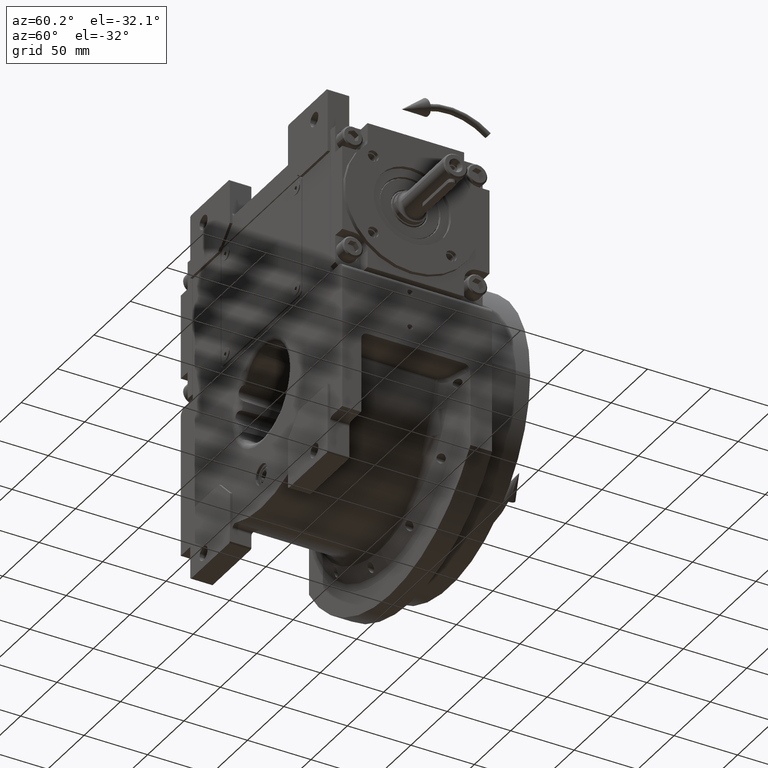
[diagram: clean part render]
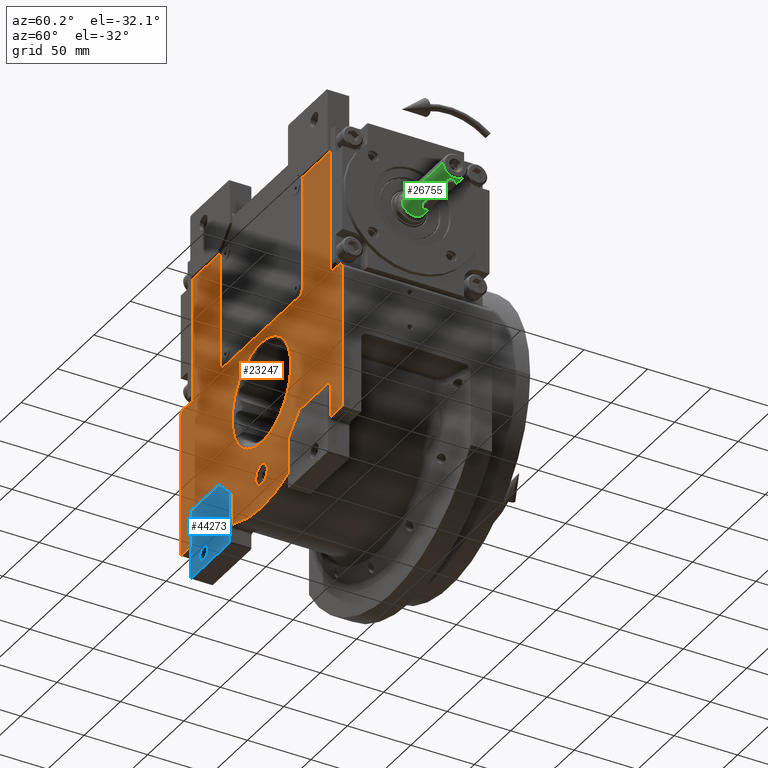
[diagram: same view with three faces highlighted in distinct colors, each labeled with its STEP entity id]
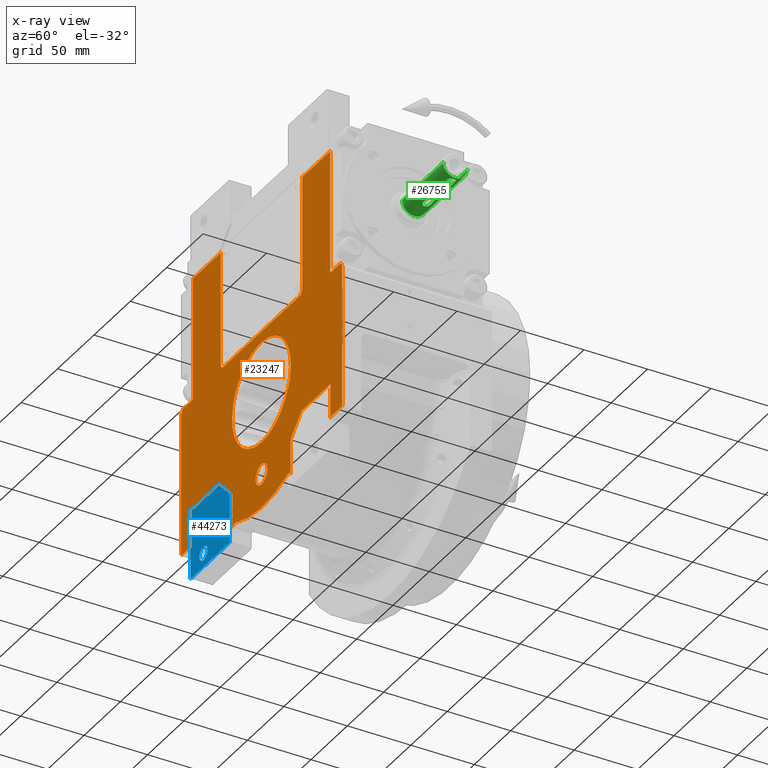
[diagram: x-ray of the same camera — body ghosted, the three highlighted faces saturated]
A machine part, auxiliary view with three faces highlighted in distinct colors.
The next image is the same camera in x-ray (body ghosted, the three faces saturated) — at least one of them is partly hidden behind the body in this view.
Their STEP definitions:

[orange] entity #23247 — the highlighted planar face has unit normal (0, 1, 0).
#12 = CARTESIAN_POINT ( 'NONE',  ( -55.00000000000000000, -53.50000000000000000, -45.00000000000000000 ) ) ;
#329 = DIRECTION ( 'NONE',  ( -3.469446951953617344E-15, 0.000000000000000000, 1.000000000000000000 ) ) ;
#430 = CARTESIAN_POINT ( 'NONE',  ( 52.00000000000000000, -53.50000000000000000, 49.00000000000000000 ) ) ;
#439 = PLANE ( 'NONE',  #8843 ) ;
#475 = VECTOR ( 'NONE', #62715, 1000.000000000000000 ) ;
#605 = VECTOR ( 'NONE', #22302, 1000.000000000000000 ) ;
#892 = VERTEX_POINT ( 'NONE', #16688 ) ;
#954 = CARTESIAN_POINT ( 'NONE',  ( 56.00000000000000000, -53.50000000000000000, 142.0000000000000000 ) ) ;
#1371 = DIRECTION ( 'NONE',  ( 0.000000000000000000, -1.000000000000000000, 0.000000000000000000 ) ) ;
#1452 = DIRECTION ( 'NONE',  ( -1.000000000000000000, 0.000000000000000000, 1.734723475976808672E-15 ) ) ;
#1623 =( BOUNDED_CURVE ( )  B_SPLINE_CURVE ( 3, ( #24927, #40459, #36204, #56610 ),
 .UNSPECIFIED., .F., .F. ) 
 B_SPLINE_CURVE_WITH_KNOTS ( ( 4, 4 ),
 ( 4.574175343352308687, 7.715766673011676957 ),
 .UNSPECIFIED. ) 
 CURVE ( )  GEOMETRIC_REPRESENTATION_ITEM ( )  RATIONAL_B_SPLINE_CURVE ( ( 1.000000000000000000, 0.3333337746434750226, 0.3333337746434750226, 1.000000000000000000 ) ) 
 REPRESENTATION_ITEM ( '' )  );
#1711 = VERTEX_POINT ( 'NONE', #49488 ) ;
#2564 = CARTESIAN_POINT ( 'NONE',  ( 111.0000000000000000, -53.50000000000000000, -71.43528539874399996 ) ) ;
#2633 = CARTESIAN_POINT ( 'NONE',  ( 40.00000000000000000, -53.50000000000000000, -60.00000000000000000 ) ) ;
#3122 = ORIENTED_EDGE ( 'NONE', *, *, #51309, .T. ) ;
#3188 = EDGE_CURVE ( 'NONE', #57203, #10928, #66654, .T. ) ;
#3602 = CARTESIAN_POINT ( 'NONE',  ( 8.881784197001250351E-16, -53.50000000000000000, -66.00000000000000000 ) ) ;
#3698 = EDGE_CURVE ( 'NONE', #10928, #13591, #6963, .T. ) ;
#4111 = CARTESIAN_POINT ( 'NONE',  ( -94.50000000000000000, -53.50000000000000000, -74.43528539874409944 ) ) ;
#4315 = EDGE_CURVE ( 'NONE', #6800, #32798, #59158, .T. ) ;
#4551 = ORIENTED_EDGE ( 'NONE', *, *, #62792, .F. ) ;
#4853 = DIRECTION ( 'NONE',  ( -0.7071067811865474617, 0.000000000000000000, 0.7071067811865474617 ) ) ;
#5042 = CARTESIAN_POINT ( 'NONE',  ( -35.84375000000000000, -53.50000000000000000, -85.81506619433150718 ) ) ;
#5076 = CARTESIAN_POINT ( 'NONE',  ( -111.0000000000000000, -53.50000000000000000, -71.43528539874409944 ) ) ;
#5177 = VERTEX_POINT ( 'NONE', #40936 ) ;
#5194 = LINE ( 'NONE', #27337, #26206 ) ;
#5291 = EDGE_CURVE ( 'NONE', #43536, #54487, #57449, .T. ) ;
#5335 = DIRECTION ( 'NONE',  ( 1.000000000000000000, 0.000000000000000000, 0.000000000000000000 ) ) ;
#5364 = DIRECTION ( 'NONE',  ( 0.000000000000000000, 0.000000000000000000, -1.000000000000000000 ) ) ;
#5680 = CARTESIAN_POINT ( 'NONE',  ( 55.87298334620739837, -53.50000000000000000, 143.0000000000000000 ) ) ;
#6260 = EDGE_CURVE ( 'NONE', #57530, #51033, #43885, .T. ) ;
#6267 = CARTESIAN_POINT ( 'NONE',  ( 97.50000000000000000, -53.50000000000000000, -71.43528539874399996 ) ) ;
#6289 = LINE ( 'NONE', #54794, #7637 ) ;
#6520 = EDGE_CURVE ( 'NONE', #26194, #14423, #62380, .T. ) ;
#6625 = CARTESIAN_POINT ( 'NONE',  ( -97.50000000000000000, -53.50000000000000000, -71.43528539874409944 ) ) ;
#6722 = DIRECTION ( 'NONE',  ( 1.000000000000000000, 0.000000000000000000, 0.000000000000000000 ) ) ;
#6800 = VERTEX_POINT ( 'NONE', #54949 ) ;
#6951 = AXIS2_PLACEMENT_3D ( 'NONE', #56018, #13803, #51778 ) ;
#6963 = LINE ( 'NONE', #6267, #65625 ) ;
#7055 = ORIENTED_EDGE ( 'NONE', *, *, #57271, .T. ) ;
#7540 = CARTESIAN_POINT ( 'NONE',  ( -56.00000000000000000, -53.50000000000000000, 53.00000000000000000 ) ) ;
#7543 = LINE ( 'NONE', #67300, #8726 ) ;
#7574 = CARTESIAN_POINT ( 'NONE',  ( -94.50000000000000000, -53.50000000000000000, 143.0000000000000000 ) ) ;
#7637 = VECTOR ( 'NONE', #16142, 1000.000000000000000 ) ;
#8317 = CARTESIAN_POINT ( 'NONE',  ( 94.50000000000000000, -53.50000000000000000, 45.00000000000000000 ) ) ;
#8586 = VECTOR ( 'NONE', #54008, 1000.000000000000000 ) ;
#8671 = LINE ( 'NONE', #42784, #8586 ) ;
#8726 = VECTOR ( 'NONE', #60998, 1000.000000000000000 ) ;
#8843 = AXIS2_PLACEMENT_3D ( 'NONE', #59482, #10947, #5335 ) ;
#9195 = VERTEX_POINT ( 'NONE', #954 ) ;
#9395 = DIRECTION ( 'NONE',  ( 1.000000000000000000, 0.000000000000000000, 1.387778780781246883E-14 ) ) ;
#9474 = CARTESIAN_POINT ( 'NONE',  ( -8.881784197001250351E-16, -53.50000000000000000, -66.00000000000000000 ) ) ;
#9586 = ORIENTED_EDGE ( 'NONE', *, *, #49699, .F. ) ;
#9639 = ORIENTED_EDGE ( 'NONE', *, *, #28527, .F. ) ;
#9786 = ORIENTED_EDGE ( 'NONE', *, *, #54672, .T. ) ;
#10237 = CIRCLE ( 'NONE', #67516, 3.000000000000002665 ) ;
#10347 = LINE ( 'NONE', #5076, #54821 ) ;
#10396 = ORIENTED_EDGE ( 'NONE', *, *, #37884, .F. ) ;
#10928 = VERTEX_POINT ( 'NONE', #64170 ) ;
#10947 = DIRECTION ( 'NONE',  ( -0.000000000000000000, 1.000000000000000000, 0.000000000000000000 ) ) ;
#11820 = CARTESIAN_POINT ( 'NONE',  ( -1.264761546777279996E-10, -53.50000000000000000, 40.30959420574835406 ) ) ;
#11884 = CARTESIAN_POINT ( 'NONE',  ( -52.00000000000000000, -53.50000000000000000, 49.00000000000000000 ) ) ;
#11952 = ORIENTED_EDGE ( 'NONE', *, *, #22298, .F. ) ;
#12455 = EDGE_LOOP ( 'NONE', ( #49498, #52638, #53234, #37735, #61983, #9639, #42592, #67354, #9786, #36418, #3122, #58390, #17103, #67958, #39875, #35597, #48729, #7055, #27355, #10396, #40312, #9586, #29599, #26779, #67800, #29385, #60414, #66047, #29721, #11952, #41308, #54362 ) ) ;
#12492 = CARTESIAN_POINT ( 'NONE',  ( -1.264761546777279996E-10, -53.50000000000000000, 40.30959420574835406 ) ) ;
#12545 = EDGE_CURVE ( 'NONE', #57930, #54588, #60729, .T. ) ;
#12910 = DIRECTION ( 'NONE',  ( 0.000000000000000000, 0.000000000000000000, -1.000000000000000000 ) ) ;
#12997 = CARTESIAN_POINT ( 'NONE',  ( -94.50000000000000000, -53.50000000000000000, -45.00000000000000000 ) ) ;
#13268 = CARTESIAN_POINT ( 'NONE',  ( 107.0000000000000000, -53.50000000000000000, 41.00000000000000000 ) ) ;
#13591 = VERTEX_POINT ( 'NONE', #2564 ) ;
#13707 = DIRECTION ( 'NONE',  ( 0.000000000000000000, 0.000000000000000000, -1.000000000000000000 ) ) ;
#13803 = DIRECTION ( 'NONE',  ( 0.000000000000000000, -1.000000000000000000, 0.000000000000000000 ) ) ;
#13844 = VERTEX_POINT ( 'NONE', #11884 ) ;
#14050 = EDGE_CURVE ( 'NONE', #54512, #53227, #57289, .T. ) ;
#14128 = ORIENTED_EDGE ( 'NONE', *, *, #42747, .T. ) ;
#14294 = DIRECTION ( 'NONE',  ( 0.000000000000000000, -1.000000000000000000, 0.000000000000000000 ) ) ;
#14423 = VERTEX_POINT ( 'NONE', #46592 ) ;
#15087 = VERTEX_POINT ( 'NONE', #44346 ) ;
#15252 = DIRECTION ( 'NONE',  ( 1.000000000000000000, 0.000000000000000000, 0.000000000000000000 ) ) ;
#15714 = DIRECTION ( 'NONE',  ( 1.000000000000000000, 0.000000000000000000, 0.000000000000000000 ) ) ;
#15943 = DIRECTION ( 'NONE',  ( 6.319570704518680589E-16, 0.000000000000000000, 1.000000000000000000 ) ) ;
#16118 = DIRECTION ( 'NONE',  ( -0.3854166666666672403, 0.000000000000000000, -0.9227426472508764022 ) ) ;
#16142 = DIRECTION ( 'NONE',  ( 0.000000000000000000, 0.000000000000000000, 1.000000000000000000 ) ) ;
#16165 = VECTOR ( 'NONE', #15943, 1000.000000000000000 ) ;
#16204 = CARTESIAN_POINT ( 'NONE',  ( -52.00000000000000000, -53.50000000000000000, 53.00000000000000000 ) ) ;
#16634 = CARTESIAN_POINT ( 'NONE',  ( 111.0000000000000000, -53.50000000000000000, -71.43528539874399996 ) ) ;
#16688 = CARTESIAN_POINT ( 'NONE',  ( 55.87298334620739837, -53.50000000000000000, 143.0000000000000000 ) ) ;
#16799 = DIRECTION ( 'NONE',  ( 0.000000000000000000, 0.000000000000000000, -1.000000000000000000 ) ) ;
#17103 = ORIENTED_EDGE ( 'NONE', *, *, #46551, .F. ) ;
#17364 = AXIS2_PLACEMENT_3D ( 'NONE', #3602, #67233, #35942 ) ;
#17486 = EDGE_LOOP ( 'NONE', ( #4551, #35200 ) ) ;
#17762 = VECTOR ( 'NONE', #13707, 1000.000000000000000 ) ;
#18366 = CARTESIAN_POINT ( 'NONE',  ( -40.00000000000000000, -53.50000000000000000, -88.58329413608420566 ) ) ;
#18420 = VERTEX_POINT ( 'NONE', #50150 ) ;
#19979 = CARTESIAN_POINT ( 'NONE',  ( -37.00000000000000000, -53.50000000000000000, -88.58329413608420566 ) ) ;
#20470 = CARTESIAN_POINT ( 'NONE',  ( 107.0000000000000000, -53.50000000000000000, 45.00000000000000000 ) ) ;
#20536 = VERTEX_POINT ( 'NONE', #52341 ) ;
#20735 = VERTEX_POINT ( 'NONE', #28061 ) ;
#21078 = EDGE_CURVE ( 'NONE', #13844, #54512, #8671, .T. ) ;
#21269 = AXIS2_PLACEMENT_3D ( 'NONE', #28063, #1371, #329 ) ;
#21415 = DIRECTION ( 'NONE',  ( -1.000000000000000000, 0.000000000000000000, 0.000000000000000000 ) ) ;
#21572 = CARTESIAN_POINT ( 'NONE',  ( 94.50000000000000000, -53.50000000000000000, 45.00000000000000000 ) ) ;
#21662 = DIRECTION ( 'NONE',  ( 0.000000000000000000, 0.000000000000000000, -1.000000000000000000 ) ) ;
#22298 = EDGE_CURVE ( 'NONE', #9195, #892, #49197, .T. ) ;
#22302 = DIRECTION ( 'NONE',  ( 0.000000000000000000, 0.000000000000000000, 1.000000000000000000 ) ) ;
#22324 = VECTOR ( 'NONE', #34528, 1000.000000000000000 ) ;
#22360 = VERTEX_POINT ( 'NONE', #4111 ) ;
#22644 = CIRCLE ( 'NONE', #6951, 4.000000000000978773 ) ;
#22710 = CARTESIAN_POINT ( 'NONE',  ( -94.50000000000000000, -53.50000000000000000, 45.00000000000000000 ) ) ;
#22716 = VECTOR ( 'NONE', #15252, 1000.000000000000000 ) ;
#22720 = VERTEX_POINT ( 'NONE', #7574 ) ;
#22989 = EDGE_CURVE ( 'NONE', #5177, #43466, #10347, .T. ) ;
#23247 = ADVANCED_FACE ( 'NONE', ( #59127, #27472, #37342 ), #439, .F. ) ;
#23444 = LINE ( 'NONE', #34351, #24915 ) ;
#23603 = CARTESIAN_POINT ( 'NONE',  ( 8.000000000000000000, -53.50000000000000000, -66.00000000000000000 ) ) ;
#23908 = CARTESIAN_POINT ( 'NONE',  ( 35.84375000000000000, -53.50000000000000000, -85.81506619433150718 ) ) ;
#24318 = AXIS2_PLACEMENT_3D ( 'NONE', #27513, #69022, #48958 ) ;
#24331 = CARTESIAN_POINT ( 'NONE',  ( 40.00000000000000000, -53.50000000000000000, -60.00000000000000000 ) ) ;
#24677 = VECTOR ( 'NONE', #15714, 1000.000000000000000 ) ;
#24915 = VECTOR ( 'NONE', #12910, 1000.000000000000000 ) ;
#24927 = CARTESIAN_POINT ( 'NONE',  ( -1.264761546777279996E-10, -53.50000000000000000, 40.30959420574835406 ) ) ;
#25177 = LINE ( 'NONE', #16634, #16165 ) ;
#26194 = VERTEX_POINT ( 'NONE', #24331 ) ;
#26206 = VECTOR ( 'NONE', #4853, 1000.000000000000114 ) ;
#26504 = DIRECTION ( 'NONE',  ( 1.000000000000000000, 0.000000000000000000, 0.000000000000000000 ) ) ;
#26582 = CARTESIAN_POINT ( 'NONE',  ( 52.00000000000000000, -53.50000000000000000, 53.00000000000000000 ) ) ;
#26779 = ORIENTED_EDGE ( 'NONE', *, *, #3698, .T. ) ;
#27337 = CARTESIAN_POINT ( 'NONE',  ( -40.00000000000000000, -53.50000000000000000, -60.00000000000000000 ) ) ;
#27355 = ORIENTED_EDGE ( 'NONE', *, *, #6520, .F. ) ;
#27358 = VECTOR ( 'NONE', #16799, 1000.000000000000000 ) ;
#27463 = CARTESIAN_POINT ( 'NONE',  ( -94.50000000000000000, -53.50000000000000000, 45.00000000000000000 ) ) ;
#27472 = FACE_BOUND ( 'NONE', #17486, .T. ) ;
#27513 = CARTESIAN_POINT ( 'NONE',  ( -97.50000000000000000, -53.50000000000000000, -74.43528539874409944 ) ) ;
#27692 = DIRECTION ( 'NONE',  ( 1.000000000000000000, 0.000000000000000000, 0.000000000000000000 ) ) ;
#27984 = VERTEX_POINT ( 'NONE', #23603 ) ;
#28061 = CARTESIAN_POINT ( 'NONE',  ( 94.50000000000000000, -53.50000000000000000, -45.00000000000000000 ) ) ;
#28063 = CARTESIAN_POINT ( 'NONE',  ( -107.0000000000000000, -53.50000000000000000, 41.00000000000000000 ) ) ;
#28527 = EDGE_CURVE ( 'NONE', #54487, #22720, #49087, .T. ) ;
#28611 = VERTEX_POINT ( 'NONE', #11820 ) ;
#28900 = EDGE_CURVE ( 'NONE', #20735, #62247, #7543, .T. ) ;
#29061 = DIRECTION ( 'NONE',  ( 0.000000000000000000, 1.000000000000000000, 0.000000000000000000 ) ) ;
#29349 = CIRCLE ( 'NONE', #34970, 8.000000000000000000 ) ;
#29380 = EDGE_LOOP ( 'NONE', ( #14128, #68959 ) ) ;
#29385 = ORIENTED_EDGE ( 'NONE', *, *, #63597, .T. ) ;
#29413 = CARTESIAN_POINT ( 'NONE',  ( 37.00000000000000000, -53.50000000000000000, -88.58329413608420566 ) ) ;
#29583 = VECTOR ( 'NONE', #5364, 1000.000000000000000 ) ;
#29599 = ORIENTED_EDGE ( 'NONE', *, *, #3188, .T. ) ;
#29721 = ORIENTED_EDGE ( 'NONE', *, *, #53253, .F. ) ;
#29799 = CIRCLE ( 'NONE', #43277, 4.000000000000003553 ) ;
#29958 = VECTOR ( 'NONE', #6722, 1000.000000000000000 ) ;
#30632 = EDGE_CURVE ( 'NONE', #1711, #35230, #37744, .T. ) ;
#31207 = VECTOR ( 'NONE', #56752, 1000.000000000000000 ) ;
#31592 = DIRECTION ( 'NONE',  ( 0.000000000000000000, -1.000000000000000000, 0.000000000000000000 ) ) ;
#32736 = LINE ( 'NONE', #5680, #29958 ) ;
#32784 = CARTESIAN_POINT ( 'NONE',  ( 94.50000000000000000, -53.50000000000000000, 143.0000000000000000 ) ) ;
#32798 = VERTEX_POINT ( 'NONE', #8317 ) ;
#33066 = DIRECTION ( 'NONE',  ( 0.000000000000000000, 1.000000000000000000, 0.000000000000000000 ) ) ;
#33146 = EDGE_CURVE ( 'NONE', #43536, #46494, #51577, .T. ) ;
#33373 = VECTOR ( 'NONE', #54710, 1000.000000000000000 ) ;
#33745 = CIRCLE ( 'NONE', #50594, 3.000000000000003997 ) ;
#33899 = EDGE_CURVE ( 'NONE', #28611, #15087, #1623, .T. ) ;
#34351 = CARTESIAN_POINT ( 'NONE',  ( -94.50000000000000000, -53.50000000000000000, -45.00000000000000000 ) ) ;
#34528 = DIRECTION ( 'NONE',  ( 0.000000000000000000, 0.000000000000000000, 1.000000000000000000 ) ) ;
#34831 = CARTESIAN_POINT ( 'NONE',  ( -55.87298334620739837, -53.50000000000000000, 143.0000000000000000 ) ) ;
#34970 = AXIS2_PLACEMENT_3D ( 'NONE', #9474, #36197, #42158 ) ;
#35200 = ORIENTED_EDGE ( 'NONE', *, *, #43212, .F. ) ;
#35230 = VERTEX_POINT ( 'NONE', #41504 ) ;
#35597 = ORIENTED_EDGE ( 'NONE', *, *, #58215, .T. ) ;
#35942 = DIRECTION ( 'NONE',  ( 1.000000000000000000, 0.000000000000000000, 0.000000000000000000 ) ) ;
#36140 = LINE ( 'NONE', #36481, #24677 ) ;
#36197 = DIRECTION ( 'NONE',  ( 0.000000000000000000, -1.000000000000000000, 0.000000000000000000 ) ) ;
#36204 = CARTESIAN_POINT ( 'NONE',  ( 80.61913312125007280, -53.49999999999999289, -40.30955543265933727 ) ) ;
#36245 = LINE ( 'NONE', #57698, #48602 ) ;
#36338 = AXIS2_PLACEMENT_3D ( 'NONE', #59447, #33066, #65755 ) ;
#36418 = ORIENTED_EDGE ( 'NONE', *, *, #22989, .T. ) ;
#36465 = CARTESIAN_POINT ( 'NONE',  ( 51.99999999999940314, -53.50000000000000000, 142.0000000000000000 ) ) ;
#36481 = CARTESIAN_POINT ( 'NONE',  ( -94.50000000000000000, -53.50000000000000000, 143.0000000000000000 ) ) ;
#36601 = EDGE_CURVE ( 'NONE', #46305, #57530, #22644, .T. ) ;
#36793 = DIRECTION ( 'NONE',  ( 0.000000000000000000, -1.000000000000000000, 0.000000000000000000 ) ) ;
#37342 = FACE_OUTER_BOUND ( 'NONE', #12455, .T. ) ;
#37735 = ORIENTED_EDGE ( 'NONE', *, *, #36601, .F. ) ;
#37744 = LINE ( 'NONE', #18366, #22324 ) ;
#37884 = EDGE_CURVE ( 'NONE', #62247, #26194, #36245, .T. ) ;
#38283 = CARTESIAN_POINT ( 'NONE',  ( 55.00000000000000000, -53.50000000000000000, -45.00000000000000000 ) ) ;
#38433 = EDGE_CURVE ( 'NONE', #35230, #18420, #5194, .T. ) ;
#39071 = AXIS2_PLACEMENT_3D ( 'NONE', #36465, #14294, #9395 ) ;
#39423 = CARTESIAN_POINT ( 'NONE',  ( -111.0000000000000000, -53.50000000000000000, 41.00000000000000000 ) ) ;
#39673 = DIRECTION ( 'NONE',  ( 1.000000000000000000, 0.000000000000000000, 5.204170427930416550E-15 ) ) ;
#39822 = CIRCLE ( 'NONE', #17364, 8.000000000000000000 ) ;
#39875 = ORIENTED_EDGE ( 'NONE', *, *, #30632, .F. ) ;
#40312 = ORIENTED_EDGE ( 'NONE', *, *, #28900, .F. ) ;
#40459 = CARTESIAN_POINT ( 'NONE',  ( 80.61913312099713380, -53.49999999999999289, 40.30952624498025472 ) ) ;
#40936 = CARTESIAN_POINT ( 'NONE',  ( -111.0000000000000000, -53.50000000000000000, -71.43528539874409944 ) ) ;
#41308 = ORIENTED_EDGE ( 'NONE', *, *, #54829, .F. ) ;
#41459 = DIRECTION ( 'NONE',  ( 0.000000000000000000, 1.000000000000000000, 0.000000000000000000 ) ) ;
#41504 = CARTESIAN_POINT ( 'NONE',  ( -40.00000000000000000, -53.50000000000000000, -60.00000000000000000 ) ) ;
#42009 = LINE ( 'NONE', #21572, #22716 ) ;
#42158 = DIRECTION ( 'NONE',  ( -1.000000000000000000, 0.000000000000000000, 0.000000000000000000 ) ) ;
#42290 = EDGE_CURVE ( 'NONE', #68604, #22360, #23444, .T. ) ;
#42592 = ORIENTED_EDGE ( 'NONE', *, *, #5291, .F. ) ;
#42747 = EDGE_CURVE ( 'NONE', #15087, #28611, #47788, .T. ) ;
#42784 = CARTESIAN_POINT ( 'NONE',  ( -52.00000000000000000, -53.50000000000000000, 49.00000000000000000 ) ) ;
#42871 = AXIS2_PLACEMENT_3D ( 'NONE', #16204, #48549, #1452 ) ;
#42951 = EDGE_CURVE ( 'NONE', #51033, #13844, #51832, .T. ) ;
#42956 = VECTOR ( 'NONE', #21415, 1000.000000000000000 ) ;
#43212 = EDGE_CURVE ( 'NONE', #64309, #27984, #29349, .T. ) ;
#43277 = AXIS2_PLACEMENT_3D ( 'NONE', #13268, #56860, #39673 ) ;
#43466 = VERTEX_POINT ( 'NONE', #6625 ) ;
#43536 = VERTEX_POINT ( 'NONE', #61111 ) ;
#43885 = LINE ( 'NONE', #58307, #27358 ) ;
#44321 = EDGE_CURVE ( 'NONE', #32798, #47233, #42009, .T. ) ;
#44346 = CARTESIAN_POINT ( 'NONE',  ( 1.264666971694413862E-10, -53.50000000000000000, -40.30959420574829721 ) ) ;
#44798 = LINE ( 'NONE', #66253, #605 ) ;
#46305 = VERTEX_POINT ( 'NONE', #34831 ) ;
#46494 = VERTEX_POINT ( 'NONE', #47784 ) ;
#46551 = EDGE_CURVE ( 'NONE', #18420, #68604, #48138, .T. ) ;
#46592 = CARTESIAN_POINT ( 'NONE',  ( 40.00000000000000000, -53.50000000000000000, -88.58329413608420566 ) ) ;
#47233 = VERTEX_POINT ( 'NONE', #20470 ) ;
#47784 = CARTESIAN_POINT ( 'NONE',  ( -111.0000000000000000, -53.50000000000000000, 41.00000000000000000 ) ) ;
#47788 =( BOUNDED_CURVE ( )  B_SPLINE_CURVE ( 3, ( #49757, #60666, #50090, #12492 ),
 .UNSPECIFIED., .F., .F. ) 
 B_SPLINE_CURVE_WITH_KNOTS ( ( 4, 4 ),
 ( 1.432582689913126872, 4.574174019572492256 ),
 .UNSPECIFIED. ) 
 CURVE ( )  GEOMETRIC_REPRESENTATION_ITEM ( )  RATIONAL_B_SPLINE_CURVE ( ( 1.000000000000000000, 0.3333337746434759108, 0.3333337746434759108, 1.000000000000000000 ) ) 
 REPRESENTATION_ITEM ( '' )  );
#48138 = LINE ( 'NONE', #12, #42956 ) ;
#48549 = DIRECTION ( 'NONE',  ( 0.000000000000000000, -1.000000000000000000, 0.000000000000000000 ) ) ;
#48602 = VECTOR ( 'NONE', #52393, 1000.000000000000114 ) ;
#48729 = ORIENTED_EDGE ( 'NONE', *, *, #12545, .T. ) ;
#48958 = DIRECTION ( 'NONE',  ( 0.000000000000000000, 0.000000000000000000, 1.000000000000000000 ) ) ;
#49087 = LINE ( 'NONE', #22710, #33373 ) ;
#49197 = CIRCLE ( 'NONE', #39071, 4.000000000000572875 ) ;
#49488 = CARTESIAN_POINT ( 'NONE',  ( -40.00000000000000000, -53.50000000000000000, -88.58329413608420566 ) ) ;
#49498 = ORIENTED_EDGE ( 'NONE', *, *, #21078, .F. ) ;
#49699 = EDGE_CURVE ( 'NONE', #57203, #20735, #44798, .T. ) ;
#49757 = CARTESIAN_POINT ( 'NONE',  ( 1.264666971694413862E-10, -53.50000000000000000, -40.30959420574829721 ) ) ;
#50090 = CARTESIAN_POINT ( 'NONE',  ( -80.61913312124997333, -53.49999999999999289, 40.30955543265923069 ) ) ;
#50150 = CARTESIAN_POINT ( 'NONE',  ( -55.00000000000000000, -53.50000000000000000, -45.00000000000000000 ) ) ;
#50153 = CARTESIAN_POINT ( 'NONE',  ( 94.50000000000000000, -53.50000000000000000, -74.43528539874399996 ) ) ;
#50594 = AXIS2_PLACEMENT_3D ( 'NONE', #29413, #29061, #56486 ) ;
#51033 = VERTEX_POINT ( 'NONE', #7540 ) ;
#51309 = EDGE_CURVE ( 'NONE', #43466, #22360, #52402, .T. ) ;
#51577 = CIRCLE ( 'NONE', #21269, 3.999999999999996447 ) ;
#51778 = DIRECTION ( 'NONE',  ( -0.9682458365518610277, 0.000000000000000000, 0.2499999999999737432 ) ) ;
#51832 = CIRCLE ( 'NONE', #42871, 3.999999999999996447 ) ;
#52341 = CARTESIAN_POINT ( 'NONE',  ( 111.0000000000000000, -53.50000000000000000, 41.00000000000000000 ) ) ;
#52393 = DIRECTION ( 'NONE',  ( -0.7071067811865474617, 0.000000000000000000, -0.7071067811865474617 ) ) ;
#52402 = CIRCLE ( 'NONE', #24318, 3.000000000000002665 ) ;
#52638 = ORIENTED_EDGE ( 'NONE', *, *, #42951, .F. ) ;
#53227 = VERTEX_POINT ( 'NONE', #64732 ) ;
#53234 = ORIENTED_EDGE ( 'NONE', *, *, #6260, .F. ) ;
#53253 = EDGE_CURVE ( 'NONE', #892, #6800, #32736, .T. ) ;
#54008 = DIRECTION ( 'NONE',  ( 1.000000000000000000, 0.000000000000000000, 0.000000000000000000 ) ) ;
#54335 = CARTESIAN_POINT ( 'NONE',  ( -56.00000000000000000, -53.50000000000000000, 142.0000000000000000 ) ) ;
#54362 = ORIENTED_EDGE ( 'NONE', *, *, #14050, .F. ) ;
#54487 = VERTEX_POINT ( 'NONE', #27463 ) ;
#54512 = VERTEX_POINT ( 'NONE', #430 ) ;
#54588 = VERTEX_POINT ( 'NONE', #23908 ) ;
#54672 = EDGE_CURVE ( 'NONE', #46494, #5177, #56623, .T. ) ;
#54710 = DIRECTION ( 'NONE',  ( 0.000000000000000000, 0.000000000000000000, 1.000000000000000000 ) ) ;
#54794 = CARTESIAN_POINT ( 'NONE',  ( 56.00000000000000000, -53.50000000000000000, 53.00000000000000000 ) ) ;
#54821 = VECTOR ( 'NONE', #26504, 1000.000000000000000 ) ;
#54829 = EDGE_CURVE ( 'NONE', #53227, #9195, #6289, .T. ) ;
#54949 = CARTESIAN_POINT ( 'NONE',  ( 94.50000000000000000, -53.50000000000000000, 143.0000000000000000 ) ) ;
#56018 = CARTESIAN_POINT ( 'NONE',  ( -51.99999999999900524, -53.50000000000000000, 142.0000000000000000 ) ) ;
#56265 = AXIS2_PLACEMENT_3D ( 'NONE', #64300, #31592, #16118 ) ;
#56486 = DIRECTION ( 'NONE',  ( -0.3854166666666676289, 0.000000000000000000, 0.9227426472508761801 ) ) ;
#56586 = EDGE_CURVE ( 'NONE', #22720, #46305, #36140, .T. ) ;
#56610 = CARTESIAN_POINT ( 'NONE',  ( 1.264666971694413862E-10, -53.50000000000000000, -40.30959420574829721 ) ) ;
#56623 = LINE ( 'NONE', #39423, #17762 ) ;
#56752 = DIRECTION ( 'NONE',  ( 0.000000000000000000, 0.000000000000000000, -1.000000000000000000 ) ) ;
#56860 = DIRECTION ( 'NONE',  ( 0.000000000000000000, -1.000000000000000000, 0.000000000000000000 ) ) ;
#57203 = VERTEX_POINT ( 'NONE', #50153 ) ;
#57271 = EDGE_CURVE ( 'NONE', #54588, #14423, #33745, .T. ) ;
#57289 = CIRCLE ( 'NONE', #58392, 3.999999999999996447 ) ;
#57449 = LINE ( 'NONE', #63418, #475 ) ;
#57530 = VERTEX_POINT ( 'NONE', #54335 ) ;
#57698 = CARTESIAN_POINT ( 'NONE',  ( 55.00000000000000000, -53.50000000000000000, -45.00000000000000000 ) ) ;
#57930 = VERTEX_POINT ( 'NONE', #5042 ) ;
#58215 = EDGE_CURVE ( 'NONE', #1711, #57930, #10237, .T. ) ;
#58307 = CARTESIAN_POINT ( 'NONE',  ( -56.00000000000000000, -53.50000000000000000, 142.0000000000000000 ) ) ;
#58390 = ORIENTED_EDGE ( 'NONE', *, *, #42290, .F. ) ;
#58392 = AXIS2_PLACEMENT_3D ( 'NONE', #26582, #36793, #21662 ) ;
#59127 = FACE_BOUND ( 'NONE', #29380, .T. ) ;
#59158 = LINE ( 'NONE', #32784, #29583 ) ;
#59447 = CARTESIAN_POINT ( 'NONE',  ( 97.50000000000000000, -53.50000000000000000, -74.43528539874399996 ) ) ;
#59482 = CARTESIAN_POINT ( 'NONE',  ( 0.000000000000000000, -53.50000000000000000, 0.000000000000000000 ) ) ;
#60414 = ORIENTED_EDGE ( 'NONE', *, *, #44321, .F. ) ;
#60666 = CARTESIAN_POINT ( 'NONE',  ( -80.61913312099703433, -53.49999999999999289, -40.30952624498007708 ) ) ;
#60729 = CIRCLE ( 'NONE', #56265, 92.99999999999995737 ) ;
#60998 = DIRECTION ( 'NONE',  ( -1.000000000000000000, 0.000000000000000000, 0.000000000000000000 ) ) ;
#61111 = CARTESIAN_POINT ( 'NONE',  ( -107.0000000000000000, -53.50000000000000000, 45.00000000000000000 ) ) ;
#61983 = ORIENTED_EDGE ( 'NONE', *, *, #56586, .F. ) ;
#62247 = VERTEX_POINT ( 'NONE', #38283 ) ;
#62380 = LINE ( 'NONE', #2633, #31207 ) ;
#62560 = EDGE_CURVE ( 'NONE', #13591, #20536, #25177, .T. ) ;
#62715 = DIRECTION ( 'NONE',  ( 1.000000000000000000, 0.000000000000000000, 0.000000000000000000 ) ) ;
#62792 = EDGE_CURVE ( 'NONE', #27984, #64309, #39822, .T. ) ;
#62914 = DIRECTION ( 'NONE',  ( -1.000000000000000000, 0.000000000000000000, 4.625929269271481378E-15 ) ) ;
#63418 = CARTESIAN_POINT ( 'NONE',  ( -107.0000000000000000, -53.50000000000000000, 45.00000000000000000 ) ) ;
#63597 = EDGE_CURVE ( 'NONE', #20536, #47233, #29799, .T. ) ;
#64170 = CARTESIAN_POINT ( 'NONE',  ( 97.50000000000000000, -53.50000000000000000, -71.43528539874399996 ) ) ;
#64300 = CARTESIAN_POINT ( 'NONE',  ( 1.421085471520200056E-14, -53.50000000000000000, -4.263256414560599853E-14 ) ) ;
#64309 = VERTEX_POINT ( 'NONE', #67521 ) ;
#64732 = CARTESIAN_POINT ( 'NONE',  ( 56.00000000000000000, -53.50000000000000000, 53.00000000000000000 ) ) ;
#65625 = VECTOR ( 'NONE', #27692, 1000.000000000000000 ) ;
#65755 = DIRECTION ( 'NONE',  ( -1.000000000000000000, 0.000000000000000000, 0.000000000000000000 ) ) ;
#66047 = ORIENTED_EDGE ( 'NONE', *, *, #4315, .F. ) ;
#66253 = CARTESIAN_POINT ( 'NONE',  ( 94.50000000000000000, -53.50000000000000000, -74.43528539874399996 ) ) ;
#66654 = CIRCLE ( 'NONE', #36338, 3.000000000000002665 ) ;
#67233 = DIRECTION ( 'NONE',  ( 0.000000000000000000, -1.000000000000000000, 0.000000000000000000 ) ) ;
#67300 = CARTESIAN_POINT ( 'NONE',  ( 94.50000000000000000, -53.50000000000000000, -45.00000000000000000 ) ) ;
#67354 = ORIENTED_EDGE ( 'NONE', *, *, #33146, .T. ) ;
#67516 = AXIS2_PLACEMENT_3D ( 'NONE', #19979, #41459, #62914 ) ;
#67521 = CARTESIAN_POINT ( 'NONE',  ( -8.000000000000000000, -53.50000000000000000, -66.00000000000000000 ) ) ;
#67800 = ORIENTED_EDGE ( 'NONE', *, *, #62560, .T. ) ;
#67958 = ORIENTED_EDGE ( 'NONE', *, *, #38433, .F. ) ;
#68604 = VERTEX_POINT ( 'NONE', #12997 ) ;
#68959 = ORIENTED_EDGE ( 'NONE', *, *, #33899, .T. ) ;
#69022 = DIRECTION ( 'NONE',  ( 0.000000000000000000, 1.000000000000000000, 0.000000000000000000 ) ) ;

[blue] entity #44273 — the highlighted planar face has unit normal (0, -1, 0).
#362 = VERTEX_POINT ( 'NONE', #31216 ) ;
#528 = EDGE_CURVE ( 'NONE', #17446, #31368, #56139, .T. ) ;
#1208 = DIRECTION ( 'NONE',  ( 0.000000000000000000, 0.000000000000000000, -1.000000000000000000 ) ) ;
#3105 = VECTOR ( 'NONE', #51170, 1000.000000000000000 ) ;
#3348 = DIRECTION ( 'NONE',  ( 0.000000000000000000, 0.000000000000000000, 1.000000000000000000 ) ) ;
#3595 = VECTOR ( 'NONE', #44093, 1000.000000000000000 ) ;
#3677 = EDGE_CURVE ( 'NONE', #362, #17446, #54772, .T. ) ;
#4260 = VERTEX_POINT ( 'NONE', #30703 ) ;
#5402 = ORIENTED_EDGE ( 'NONE', *, *, #35088, .T. ) ;
#7163 = VECTOR ( 'NONE', #36150, 1000.000000000000114 ) ;
#7971 = CARTESIAN_POINT ( 'NONE',  ( -55.00000000000000000, -55.50000000000000000, -45.00000000000000000 ) ) ;
#7984 = VECTOR ( 'NONE', #47588, 1000.000000000000114 ) ;
#8602 = LINE ( 'NONE', #20203, #10468 ) ;
#10468 = VECTOR ( 'NONE', #3348, 1000.000000000000000 ) ;
#13313 = EDGE_CURVE ( 'NONE', #32899, #49840, #48478, .T. ) ;
#14543 = DIRECTION ( 'NONE',  ( 1.000000000000000000, 0.000000000000000000, 0.000000000000000000 ) ) ;
#15500 = ORIENTED_EDGE ( 'NONE', *, *, #48168, .T. ) ;
#15579 = CARTESIAN_POINT ( 'NONE',  ( -94.50000000000000000, -55.50000000000000000, -99.00000000000000000 ) ) ;
#15722 = CARTESIAN_POINT ( 'NONE',  ( -41.00000000000000000, -55.50000000000000000, -100.0000000000000000 ) ) ;
#15952 = CARTESIAN_POINT ( 'NONE',  ( 0.000000000000000000, -55.50000000000000000, 0.000000000000000000 ) ) ;
#16117 = DIRECTION ( 'NONE',  ( -0.7071067811865474617, 0.000000000000000000, 0.7071067811865474617 ) ) ;
#17117 = ORIENTED_EDGE ( 'NONE', *, *, #13313, .T. ) ;
#17446 = VERTEX_POINT ( 'NONE', #66514 ) ;
#18744 = CARTESIAN_POINT ( 'NONE',  ( -70.70000000000000284, -55.50000000000000000, -89.00000000000000000 ) ) ;
#20203 = CARTESIAN_POINT ( 'NONE',  ( -40.00000000000000000, -55.50000000000000000, -99.00000000000000000 ) ) ;
#20864 = DIRECTION ( 'NONE',  ( -1.000000000000000000, 0.000000000000000000, 0.000000000000000000 ) ) ;
#21846 = VECTOR ( 'NONE', #16117, 1000.000000000000114 ) ;
#24140 = VERTEX_POINT ( 'NONE', #53947 ) ;
#25914 = LINE ( 'NONE', #15722, #7163 ) ;
#26868 = LINE ( 'NONE', #64833, #3595 ) ;
#27132 = AXIS2_PLACEMENT_3D ( 'NONE', #41297, #60219, #59550 ) ;
#27972 = CARTESIAN_POINT ( 'NONE',  ( -94.50000000000000000, -55.50000000000000000, -45.00000000000000000 ) ) ;
#28589 = LINE ( 'NONE', #59560, #63754 ) ;
#29360 = ORIENTED_EDGE ( 'NONE', *, *, #45350, .T. ) ;
#30703 = CARTESIAN_POINT ( 'NONE',  ( -41.00000000000000000, -55.50000000000000000, -100.0000000000000000 ) ) ;
#31216 = CARTESIAN_POINT ( 'NONE',  ( -40.00000000000000000, -55.50000000000000000, -60.00000000000000000 ) ) ;
#31368 = VERTEX_POINT ( 'NONE', #27972 ) ;
#31412 = CARTESIAN_POINT ( 'NONE',  ( -76.20000000000000284, -55.50000000000000000, -89.00000000000000000 ) ) ;
#32690 = CIRCLE ( 'NONE', #41682, 5.500000000000005329 ) ;
#32899 = VERTEX_POINT ( 'NONE', #68162 ) ;
#35088 = EDGE_CURVE ( 'NONE', #35306, #4260, #26868, .T. ) ;
#35306 = VERTEX_POINT ( 'NONE', #40472 ) ;
#35511 = VERTEX_POINT ( 'NONE', #54457 ) ;
#36150 = DIRECTION ( 'NONE',  ( 0.7071067811865474617, 0.000000000000000000, 0.7071067811865474617 ) ) ;
#36709 = EDGE_LOOP ( 'NONE', ( #39403, #17117 ) ) ;
#37900 = ORIENTED_EDGE ( 'NONE', *, *, #528, .T. ) ;
#39403 = ORIENTED_EDGE ( 'NONE', *, *, #57754, .T. ) ;
#40472 = CARTESIAN_POINT ( 'NONE',  ( -93.50000000000000000, -55.50000000000000000, -100.0000000000000000 ) ) ;
#40567 = EDGE_CURVE ( 'NONE', #24140, #35306, #41645, .T. ) ;
#40879 = ORIENTED_EDGE ( 'NONE', *, *, #54052, .T. ) ;
#41297 = CARTESIAN_POINT ( 'NONE',  ( -76.20000000000000284, -55.50000000000000000, -89.00000000000000000 ) ) ;
#41645 = LINE ( 'NONE', #15579, #7984 ) ;
#41682 = AXIS2_PLACEMENT_3D ( 'NONE', #31412, #63083, #14543 ) ;
#42702 = DIRECTION ( 'NONE',  ( 0.000000000000000000, -1.000000000000000000, 0.000000000000000000 ) ) ;
#44093 = DIRECTION ( 'NONE',  ( 1.000000000000000000, 0.000000000000000000, 0.000000000000000000 ) ) ;
#44273 = ADVANCED_FACE ( 'NONE', ( #69382, #53931 ), #54278, .T. ) ;
#45350 = EDGE_CURVE ( 'NONE', #35511, #362, #8602, .T. ) ;
#47024 = ORIENTED_EDGE ( 'NONE', *, *, #40567, .T. ) ;
#47588 = DIRECTION ( 'NONE',  ( 0.7071067811865474617, 0.000000000000000000, -0.7071067811865474617 ) ) ;
#48168 = EDGE_CURVE ( 'NONE', #4260, #35511, #25914, .T. ) ;
#48468 = CARTESIAN_POINT ( 'NONE',  ( -40.00000000000000000, -55.50000000000000000, -60.00000000000000000 ) ) ;
#48478 = CIRCLE ( 'NONE', #27132, 5.500000000000005329 ) ;
#49840 = VERTEX_POINT ( 'NONE', #18744 ) ;
#50713 = ORIENTED_EDGE ( 'NONE', *, *, #3677, .T. ) ;
#51170 = DIRECTION ( 'NONE',  ( -1.000000000000000000, 0.000000000000000000, 0.000000000000000000 ) ) ;
#53931 = FACE_OUTER_BOUND ( 'NONE', #60051, .T. ) ;
#53947 = CARTESIAN_POINT ( 'NONE',  ( -94.50000000000000000, -55.50000000000000000, -99.00000000000000000 ) ) ;
#54052 = EDGE_CURVE ( 'NONE', #31368, #24140, #28589, .T. ) ;
#54278 = PLANE ( 'NONE',  #65397 ) ;
#54457 = CARTESIAN_POINT ( 'NONE',  ( -40.00000000000000000, -55.50000000000000000, -99.00000000000000000 ) ) ;
#54772 = LINE ( 'NONE', #48468, #21846 ) ;
#56139 = LINE ( 'NONE', #7971, #3105 ) ;
#57754 = EDGE_CURVE ( 'NONE', #49840, #32899, #32690, .T. ) ;
#59550 = DIRECTION ( 'NONE',  ( -1.000000000000000000, 0.000000000000000000, 0.000000000000000000 ) ) ;
#59560 = CARTESIAN_POINT ( 'NONE',  ( -94.50000000000000000, -55.50000000000000000, -45.00000000000000000 ) ) ;
#60051 = EDGE_LOOP ( 'NONE', ( #5402, #15500, #29360, #50713, #37900, #40879, #47024 ) ) ;
#60219 = DIRECTION ( 'NONE',  ( 0.000000000000000000, 1.000000000000000000, 0.000000000000000000 ) ) ;
#63083 = DIRECTION ( 'NONE',  ( 0.000000000000000000, 1.000000000000000000, 0.000000000000000000 ) ) ;
#63754 = VECTOR ( 'NONE', #1208, 1000.000000000000000 ) ;
#64833 = CARTESIAN_POINT ( 'NONE',  ( -93.50000000000000000, -55.50000000000000000, -100.0000000000000000 ) ) ;
#65397 = AXIS2_PLACEMENT_3D ( 'NONE', #15952, #42702, #20864 ) ;
#66514 = CARTESIAN_POINT ( 'NONE',  ( -55.00000000000000000, -55.50000000000000000, -45.00000000000000000 ) ) ;
#68162 = CARTESIAN_POINT ( 'NONE',  ( -81.69999999999998863, -55.50000000000000000, -89.00000000000000000 ) ) ;
#69382 = FACE_BOUND ( 'NONE', #36709, .T. ) ;

[green] entity #26755 — the highlighted cylindrical surface (edge-blend (fillet) strip) has radius 9.5 mm, axis along (-1, -0, -0).
#218 = CARTESIAN_POINT ( 'NONE',  ( -3.000000000000059064, -87.99999999999998579, 9.013878188660436663 ) ) ;
#749 = CARTESIAN_POINT ( 'NONE',  ( -9.500000000000058620, -126.9999812741800014, 4.718447854656915297E-13 ) ) ;
#839 = CARTESIAN_POINT ( 'NONE',  ( -1.281189324060120649, -85.28376777947374876, 9.414028767319399194 ) ) ;
#879 = CARTESIAN_POINT ( 'NONE',  ( -2.486565676437153538, -126.9998501596940628, 9.252594484242193218 ) ) ;
#2049 = CARTESIAN_POINT ( 'NONE',  ( 2.654035433224668061, -86.58775814981392216, 9.123168974702311473 ) ) ;
#2199 = CARTESIAN_POINT ( 'NONE',  ( -2.439240635759766906, -123.7502775310308465, 9.182737667636564183 ) ) ;
#2533 = CARTESIAN_POINT ( 'NONE',  ( -1.181140579761127185, -124.7577247370057734, 9.426234887287199271 ) ) ;
#2568 = EDGE_CURVE ( 'NONE', #22976, #32177, #40820, .T. ) ;
#3031 = CARTESIAN_POINT ( 'NONE',  ( 0.6700715862633362940, -124.9258717057720958, 9.476588532052632630 ) ) ;
#3056 = CARTESIAN_POINT ( 'NONE',  ( 2.999999999999932054, -87.79652413691167112, 9.015959540094430125 ) ) ;
#3108 = VECTOR ( 'NONE', #23345, 1000.000000000000000 ) ;
#3243 = B_SPLINE_CURVE_WITH_KNOTS ( 'NONE', 3,
 ( #6769, #13058, #65815, #33825, #39809, #55274, #61584, #50323, #61246, #49983, #29242, #67197, #28877, #50679, #18667, #2199, #44713, #39457, #60897, #8141, #12722, #13406, #23605, #45075, #66520, #18336, #34498, #55957, #45422, #12020, #2533, #33467, #56314, #40142, #28550, #24268, #34861 ),
 .UNSPECIFIED., .F., .F.,
 ( 4, 2, 2, 1, 1, 1, 2, 2, 2, 2, 2, 2, 2, 2, 2, 2, 1, 1, 2, 2, 4 ),
 ( 0.000000000000000000, 0.06250000000007213674, 0.09375000000010820511, 0.1093750000001262046, 0.1171875000001372930, 0.1210937500001428718, 0.1230468750001435796, 0.1250000000001442735, 0.1875000000001431910, 0.2187500000001407763, 0.2343750000001395550, 0.2421875000001376954, 0.2500000000001358358, 0.3125000000001325606, 0.3437500000001320610, 0.3593750000001317835, 0.3671875000001317280, 0.3710937500001305067, 0.3730468750001298406, 0.3750000000001292300, 0.5000000000000000000 ),
 .UNSPECIFIED. ) ;
#3398 = CARTESIAN_POINT ( 'NONE',  ( 2.759557765488265701, -123.1768410299643506, 9.090128967459135012 ) ) ;
#3424 = CARTESIAN_POINT ( 'NONE',  ( -0.1873372279795916528, -84.99999998604421592, 9.500003499687016628 ) ) ;
#3552 = DIRECTION ( 'NONE',  ( 1.000000000000000000, 0.000000000000000000, -7.549516567451064475E-15 ) ) ;
#3744 = CARTESIAN_POINT ( 'NONE',  ( 2.768052919946282220, -123.1566842267383208, 9.087531881144272461 ) ) ;
#3845 = VERTEX_POINT ( 'NONE', #26835 ) ;
#4450 = ORIENTED_EDGE ( 'NONE', *, *, #33342, .F. ) ;
#4531 = EDGE_CURVE ( 'NONE', #31769, #67519, #3243, .T. ) ;
#4588 = FACE_BOUND ( 'NONE', #5382, .T. ) ;
#4720 = CARTESIAN_POINT ( 'NONE',  ( -3.000000000000068390, -87.59294896214420589, 9.018042016221768264 ) ) ;
#5061 = CARTESIAN_POINT ( 'NONE',  ( -2.737669286832775217, -86.77301795933109929, 9.096856648680088142 ) ) ;
#5167 = EDGE_CURVE ( 'NONE', #5233, #31769, #17720, .T. ) ;
#5233 = VERTEX_POINT ( 'NONE', #30000 ) ;
#5382 = EDGE_LOOP ( 'NONE', ( #38220, #29335, #17183, #26629, #4450 ) ) ;
#5400 = CARTESIAN_POINT ( 'NONE',  ( -1.943068534801678515, -85.71351402311465506, 9.299014726790646890 ) ) ;
#5445 = CARTESIAN_POINT ( 'NONE',  ( -9.500000000000058620, -126.9999812741800014, 4.718447854656915297E-13 ) ) ;
#5766 = CARTESIAN_POINT ( 'NONE',  ( -2.715497810222191166, -86.72432611869523100, 9.103672159643645401 ) ) ;
#6077 = VECTOR ( 'NONE', #28596, 1000.000000000000000 ) ;
#6125 = CARTESIAN_POINT ( 'NONE',  ( 9.499999999999941380, -70.50000000000000000, -4.234626538313079891E-09 ) ) ;
#6482 = CARTESIAN_POINT ( 'NONE',  ( 5.838101754333729687, -126.9998501596921727, 7.596715175597085867 ) ) ;
#6719 = ORIENTED_EDGE ( 'NONE', *, *, #45635, .F. ) ;
#6769 = CARTESIAN_POINT ( 'NONE',  ( -3.000000000000073719, -121.9999999999999858, 9.013878188659992574 ) ) ;
#7709 = LINE ( 'NONE', #24189, #43479 ) ;
#7979 = CARTESIAN_POINT ( 'NONE',  ( 0.7671321872867619129, -124.9020199332430110, 9.469272452118868699 ) ) ;
#8002 = CARTESIAN_POINT ( 'NONE',  ( 1.235793663367578121, -85.26628801324301321, 9.419140064139270407 ) ) ;
#8141 = CARTESIAN_POINT ( 'NONE',  ( -2.211729675065846834, -124.0271384642302621, 9.239144195140635674 ) ) ;
#8250 = ORIENTED_EDGE ( 'NONE', *, *, #2568, .T. ) ;
#8341 = CARTESIAN_POINT ( 'NONE',  ( 2.233000137893487835, -85.99633367664070249, 9.234080581520542452 ) ) ;
#8673 = CARTESIAN_POINT ( 'NONE',  ( 2.774885376032523165, -86.85980413407970957, 9.085451960437865182 ) ) ;
#9016 = CARTESIAN_POINT ( 'NONE',  ( 2.097753111216841049, -124.1448875088566695, 9.265577982388032652 ) ) ;
#9038 = CARTESIAN_POINT ( 'NONE',  ( 2.779390116321256876, -86.87082948848433261, 9.084081755603882868 ) ) ;
#9699 = CARTESIAN_POINT ( 'NONE',  ( 2.999999999999926281, -121.9999999999999858, 9.013878188659992574 ) ) ;
#11013 = CARTESIAN_POINT ( 'NONE',  ( -1.432446464315131562, -85.35683525347684508, 9.392028259724131800 ) ) ;
#11756 = CARTESIAN_POINT ( 'NONE',  ( -9.499850154187214457, -126.9998501596965639, 1.243527483011932055 ) ) ;
#12020 = CARTESIAN_POINT ( 'NONE',  ( -1.210162165659456779, -124.7451936696672732, 9.422533051438291452 ) ) ;
#12560 = CARTESIAN_POINT ( 'NONE',  ( 1.128810340528034972, -124.7795375410525196, 9.432663478024959858 ) ) ;
#12567 = CARTESIAN_POINT ( 'NONE',  ( 9.499962530303401209, -126.9999625483602159, -1.328110121878722794E-07 ) ) ;
#12722 = CARTESIAN_POINT ( 'NONE',  ( -2.167673426689855187, -124.0741818685813200, 9.249494856150866084 ) ) ;
#12920 = CARTESIAN_POINT ( 'NONE',  ( 1.181140547728869450, -85.24227524926355670, 9.426234888894679642 ) ) ;
#13058 = CARTESIAN_POINT ( 'NONE',  ( -3.000000000000067502, -122.2034756940385023, 9.015959517543853607 ) ) ;
#13319 = CARTESIAN_POINT ( 'NONE',  ( 5.678481458969406353E-11, -124.9999999999942588, 9.499999999999817035 ) ) ;
#13406 = CARTESIAN_POINT ( 'NONE',  ( -2.143571764300114424, -124.0990689872683248, 9.255083298170603712 ) ) ;
#13605 = CARTESIAN_POINT ( 'NONE',  ( 2.801440584581182058, -86.92625446500674968, 9.077383285923806611 ) ) ;
#13922 = CARTESIAN_POINT ( 'NONE',  ( 2.999999999999931610, -122.4070515699200143, 9.018042087381394012 ) ) ;
#14281 = CARTESIAN_POINT ( 'NONE',  ( 1.763474047473241324, -85.56517310537032017, 9.335481091107235230 ) ) ;
#14627 = CARTESIAN_POINT ( 'NONE',  ( 1.898695288964640682, -124.3233775697040357, 9.308038166873977559 ) ) ;
#15942 = CARTESIAN_POINT ( 'NONE',  ( -2.699222324890636404, -86.69011207856358681, 9.108662330275793195 ) ) ;
#16436 = VERTEX_POINT ( 'NONE', #27062 ) ;
#16633 = CARTESIAN_POINT ( 'NONE',  ( -2.032155360287152046, -85.79290211566039659, 9.280087035232281067 ) ) ;
#16997 = CARTESIAN_POINT ( 'NONE',  ( -1.898695319842097495, -85.67662245531612086, 9.308038159360901176 ) ) ;
#17038 = CARTESIAN_POINT ( 'NONE',  ( 4.784304850418529043, -126.9998501596924285, 8.300839755793253616 ) ) ;
#17183 = ORIENTED_EDGE ( 'NONE', *, *, #4531, .F. ) ;
#17720 = LINE ( 'NONE', #218, #36393 ) ;
#18186 = CARTESIAN_POINT ( 'NONE',  ( 2.830818190456207528, -87.00476320255322094, 9.068480807846615477 ) ) ;
#18336 = CARTESIAN_POINT ( 'NONE',  ( -1.435996202377966657, -124.6353212372668935, 9.390445068520939742 ) ) ;
#18506 = CARTESIAN_POINT ( 'NONE',  ( 5.678481458969406353E-11, -124.9999999999942588, 9.499999999999817035 ) ) ;
#18528 = CARTESIAN_POINT ( 'NONE',  ( 0.7706161263873266831, -85.07127284022527647, 9.476581538372435887 ) ) ;
#18667 = CARTESIAN_POINT ( 'NONE',  ( -2.499491504729332014, -123.6619641988539655, 9.166504924876726079 ) ) ;
#18866 = CARTESIAN_POINT ( 'NONE',  ( 2.786101618517286216, -86.88739653410441122, 9.082041211690627946 ) ) ;
#19201 = CARTESIAN_POINT ( 'NONE',  ( 0.9847577917249588086, -124.8345789522459199, 9.448970331982526005 ) ) ;
#19226 = CARTESIAN_POINT ( 'NONE',  ( 2.143571712653702388, -85.90093096007024087, 9.255083310496770466 ) ) ;
#19546 = CARTESIAN_POINT ( 'NONE',  ( 2.447916261804152782, -123.7452899674404563, 9.180967555315630690 ) ) ;
#19567 = CARTESIAN_POINT ( 'NONE',  ( -0.6700262494407007718, -85.07411791090264330, 9.476593789660686440 ) ) ;
#20780 = B_SPLINE_CURVE_WITH_KNOTS ( 'NONE', 3,
 ( #31819, #59241, #69418, #32859, #22646, #6482, #17038, #59935, #54312, #43773, #879, #58557, #38497, #37456, #44113, #26528, #11756, #5445 ),
 .UNSPECIFIED., .F., .F.,
 ( 4, 2, 2, 2, 2, 2, 2, 2, 4 ),
 ( 0.000000000000000000, 0.1250000000000000278, 0.2500000000000000555, 0.3750000000000001110, 0.5000000000000001110, 0.6250000000000001110, 0.7500000000000002220, 0.8750000000000002220, 1.000000000000000000 ),
 .UNSPECIFIED. ) ;
#20855 = CARTESIAN_POINT ( 'NONE',  ( -2.916388701002349926, -87.20028462147470805, 9.042361604571830469 ) ) ;
#21211 = CARTESIAN_POINT ( 'NONE',  ( -2.759557775407521785, -86.82315899320001051, 9.090128970433712041 ) ) ;
#21560 = CARTESIAN_POINT ( 'NONE',  ( -2.447916187772190444, -86.25470992971018802, 9.180967576830425969 ) ) ;
#21624 = DIRECTION ( 'NONE',  ( 4.190823558986625216E-31, -1.000000000000000000, -8.381647117973250432E-31 ) ) ;
#22646 = CARTESIAN_POINT ( 'NONE',  ( 7.596715177404568031, -126.9998501596916185, 5.838101751982668119 ) ) ;
#22965 = CARTESIAN_POINT ( 'NONE',  ( 9.499999999999941380, -70.50000000000000000, 0.000000000000000000 ) ) ;
#22976 = VERTEX_POINT ( 'NONE', #6125 ) ;
#23345 = DIRECTION ( 'NONE',  ( 4.190823558986625216E-31, -1.000000000000000000, -8.381647117973250432E-31 ) ) ;
#23453 = CARTESIAN_POINT ( 'NONE',  ( -0.9122597405178375363, -85.14162013903727200, 9.456107012430010172 ) ) ;
#23605 = CARTESIAN_POINT ( 'NONE',  ( -1.943281330585348465, -124.2993588409011920, 9.300959560085964029 ) ) ;
#23797 = CARTESIAN_POINT ( 'NONE',  ( 2.722407591486231127, -86.73347063536095902, 9.101428084698344634 ) ) ;
#24189 = CARTESIAN_POINT ( 'NONE',  ( -9.500000000000058620, -70.50000000000000000, 4.718447854656915297E-13 ) ) ;
#24268 = CARTESIAN_POINT ( 'NONE',  ( -0.3747367177581951703, -125.0000000000000000, 9.500000012798530236 ) ) ;
#24469 = CARTESIAN_POINT ( 'NONE',  ( 1.168895050713871120, -85.23708419004186965, 9.427766393857075045 ) ) ;
#25155 = CARTESIAN_POINT ( 'NONE',  ( 2.699222359128255810, -123.3098878504025180, 9.108662312373271064 ) ) ;
#25491 = CARTESIAN_POINT ( 'NONE',  ( 2.076755416661423492, -124.1651843843709599, 9.270280661406445688 ) ) ;
#26443 = AXIS2_PLACEMENT_3D ( 'NONE', #41872, #52746, #3552 ) ;
#26528 = CARTESIAN_POINT ( 'NONE',  ( -9.252594481930964676, -126.9998501596962512, 2.486565685028836459 ) ) ;
#26629 = ORIENTED_EDGE ( 'NONE', *, *, #5167, .F. ) ;
#26755 = ADVANCED_FACE ( 'NONE', ( #57349, #4588 ), #40836, .T. ) ;
#26835 = CARTESIAN_POINT ( 'NONE',  ( 2.999999999999926281, -121.9999999999999858, 9.013878188659992574 ) ) ;
#26841 = CARTESIAN_POINT ( 'NONE',  ( -2.076755482103553874, -85.83481567829596770, 9.270280645846154854 ) ) ;
#27062 = CARTESIAN_POINT ( 'NONE',  ( 2.999999999999940936, -87.99999999999998579, 9.013878188659965929 ) ) ;
#27190 = CARTESIAN_POINT ( 'NONE',  ( -2.009855654636858002, -85.77258813622583489, 9.284892360323357963 ) ) ;
#28412 = EDGE_CURVE ( 'NONE', #32177, #42969, #7709, .T. ) ;
#28550 = CARTESIAN_POINT ( 'NONE',  ( -0.7705588998366972309, -124.9287509831095520, 9.476588553864617737 ) ) ;
#28596 = DIRECTION ( 'NONE',  ( 4.190823558986625216E-31, -1.000000000000000000, -8.381647117973250432E-31 ) ) ;
#28642 = LINE ( 'NONE', #50077, #3108 ) ;
#28877 = CARTESIAN_POINT ( 'NONE',  ( -2.722407573267914049, -123.2665294121083122, 9.101428096415837388 ) ) ;
#28956 = EDGE_CURVE ( 'NONE', #16436, #3845, #28642, .T. ) ;
#29084 = CARTESIAN_POINT ( 'NONE',  ( 2.167673395552996762, -85.92581809871408893, 9.249494863779661458 ) ) ;
#29242 = CARTESIAN_POINT ( 'NONE',  ( -2.774885392466751366, -123.1401958259496610, 9.085451958382481763 ) ) ;
#29335 = ORIENTED_EDGE ( 'NONE', *, *, #57310, .F. ) ;
#29438 = CARTESIAN_POINT ( 'NONE',  ( 1.160774491280303078, -85.23366271165409103, 9.428775175745290227 ) ) ;
#29748 = CARTESIAN_POINT ( 'NONE',  ( 0.9122892059528358022, -124.8583703881983809, 9.456103509198008794 ) ) ;
#29775 = CARTESIAN_POINT ( 'NONE',  ( 1.943281308260186524, -85.70064114489599660, 9.300959565147547181 ) ) ;
#30000 = CARTESIAN_POINT ( 'NONE',  ( -3.000000000000059064, -87.99999999999998579, 9.013878188660436663 ) ) ;
#30088 = CARTESIAN_POINT ( 'NONE',  ( 1.680644834774187579, -124.4869637364487431, 9.349632017425385300 ) ) ;
#30113 = CARTESIAN_POINT ( 'NONE',  ( 2.499491549841279081, -86.33803586881992942, 9.166504910581069865 ) ) ;
#30449 = CARTESIAN_POINT ( 'NONE',  ( 1.766836901024505302, -124.4270961851853201, 9.333934024808611341 ) ) ;
#30800 = CARTESIAN_POINT ( 'NONE',  ( 1.943068496173869342, -124.2864860093837365, 9.299014736060858155 ) ) ;
#31144 = CARTESIAN_POINT ( 'NONE',  ( 2.602468771945595449, -123.4955731559709875, 9.137631627636293885 ) ) ;
#31769 = VERTEX_POINT ( 'NONE', #48311 ) ;
#31819 = CARTESIAN_POINT ( 'NONE',  ( 9.499962530303401209, -126.9999625483602159, -1.328110121878722794E-07 ) ) ;
#32112 = CARTESIAN_POINT ( 'NONE',  ( -2.645267006885488215, -86.58261065125552136, 9.124972332141535247 ) ) ;
#32177 = VERTEX_POINT ( 'NONE', #68269 ) ;
#32859 = CARTESIAN_POINT ( 'NONE',  ( 8.300839757275101150, -126.9998501596913343, 4.784304847849739417 ) ) ;
#33342 = EDGE_CURVE ( 'NONE', #16436, #5233, #35183, .T. ) ;
#33467 = CARTESIAN_POINT ( 'NONE',  ( -1.168895085572337234, -124.7629157952091390, 9.427766391953467107 ) ) ;
#33659 = CARTESIAN_POINT ( 'NONE',  ( 1.140769700413824195, -124.7746506478512174, 9.431223125017977438 ) ) ;
#33825 = CARTESIAN_POINT ( 'NONE',  ( -2.920503266625305461, -122.6930762525242784, 9.041319761745358008 ) ) ;
#34004 = CARTESIAN_POINT ( 'NONE',  ( 1.281189307576019010, -124.7162322310917517, 9.414028766452419816 ) ) ;
#34363 = CARTESIAN_POINT ( 'NONE',  ( -1.110854915202418081, -85.21319308340717669, 9.434807599229216635 ) ) ;
#34498 = CARTESIAN_POINT ( 'NONE',  ( -1.324139228442655636, -124.6922864043239798, 9.406950161700040169 ) ) ;
#34861 = CARTESIAN_POINT ( 'NONE',  ( 5.678481458969406353E-11, -124.9999999999942588, 9.499999999999817035 ) ) ;
#35180 = AXIS2_PLACEMENT_3D ( 'NONE', #63431, #64467, #64117 ) ;
#35183 = B_SPLINE_CURVE_WITH_KNOTS ( 'NONE', 3,
 ( #40354, #3056, #50883, #46311, #45603, #67051, #18186, #13605, #18866, #9038, #8673, #62476, #23797, #2049, #30113, #50178, #67747, #45281, #8341, #67413, #29084, #19226, #29775, #14281, #51204, #51561, #66725, #56169, #8002, #44934, #12920, #24469, #29438, #62142, #18528, #45964, #3424, #35751, #19567, #57209, #23453, #50541, #55816, #34363, #66378, #39995, #64132, #839, #11013, #69373, #48646, #16997, #5400, #27190, #16633, #26841, #64817, #43724, #21560, #53922, #32112, #15942, #5766, #5061, #59894, #21211, #38100, #37411, #48303, #20855, #4720, #64486 ),
 .UNSPECIFIED., .F., .F.,
 ( 4, 2, 2, 1, 1, 1, 2, 2, 2, 2, 2, 2, 2, 2, 2, 2, 1, 1, 2, 2, 2, 2, 2, 1, 1, 1, 2, 2, 2, 2, 2, 2, 2, 2, 2, 2, 1, 1, 2, 2, 4 ),
 ( 0.000000000000000000, 0.06250000000012012613, 0.09375000000018020307, 0.1093750000002102624, 0.1171875000002252920, 0.1210937500002327999, 0.1230468750002344375, 0.1250000000002360889, 0.1875000000001681155, 0.2187500000001322831, 0.2343750000001144085, 0.2421875000001041667, 0.2500000000000939249, 0.3125000000000144329, 0.3437499999999758526, 0.3593749999999553690, 0.3671874999999450440, 0.3710937499999411582, 0.3730468749999402700, 0.3749999999999394373, 0.4999999999999341638, 0.5624999999999314992, 0.5937499999999301670, 0.6093749999999293898, 0.6171874999999297229, 0.6210937499999290567, 0.6230468749999288347, 0.6249999999999286127, 0.6874999999999330536, 0.7187499999999340528, 0.7343749999999346079, 0.7421874999999349409, 0.7499999999999351630, 0.8124999999999211742, 0.8437499999999141798, 0.8593749999999129585, 0.8671874999999125144, 0.8710937499999122924, 0.8730468749999121814, 0.8749999999999120703, 1.000000000000000000 ),
 .UNSPECIFIED. ) ;
#35751 = CARTESIAN_POINT ( 'NONE',  ( -0.3796883895779885054, -85.01759804456541758, 9.494152384563488312 ) ) ;
#36090 = CARTESIAN_POINT ( 'NONE',  ( 2.309831043562217356, -123.9328101798836315, 9.217002131571600643 ) ) ;
#36393 = VECTOR ( 'NONE', #21624, 1000.000000000000000 ) ;
#37081 = EDGE_CURVE ( 'NONE', #67768, #42969, #20780, .T. ) ;
#37411 = CARTESIAN_POINT ( 'NONE',  ( -2.767317576904903653, -86.84156604652807232, 9.087756600386098782 ) ) ;
#37456 = CARTESIAN_POINT ( 'NONE',  ( -7.596715173787258912, -126.9998501596954270, 5.838101756683291121 ) ) ;
#38100 = CARTESIAN_POINT ( 'NONE',  ( -2.764238467452660331, -86.83423780681545168, 9.088697176592834381 ) ) ;
#38220 = ORIENTED_EDGE ( 'NONE', *, *, #28956, .T. ) ;
#38497 = CARTESIAN_POINT ( 'NONE',  ( -5.838101749629067250, -126.9998501596948728, 7.596715179209136082 ) ) ;
#39457 = CARTESIAN_POINT ( 'NONE',  ( -2.294623496019229769, -123.9335398661573464, 9.219224874490787869 ) ) ;
#39809 = CARTESIAN_POINT ( 'NONE',  ( -2.896334112362451307, -122.7877959856576382, 9.048659464309743328 ) ) ;
#39974 = CARTESIAN_POINT ( 'NONE',  ( 0.3797346756259672440, -124.9823960591359935, 9.494147125813507060 ) ) ;
#39995 = CARTESIAN_POINT ( 'NONE',  ( -1.140767991027374251, -85.22534864716668324, 9.431223337962794773 ) ) ;
#40142 = CARTESIAN_POINT ( 'NONE',  ( -1.158690057567120402, -124.7672150589293238, 9.429034014896346960 ) ) ;
#40354 = CARTESIAN_POINT ( 'NONE',  ( 2.999999999999940936, -87.99999999999998579, 9.013878188659965929 ) ) ;
#40678 = CARTESIAN_POINT ( 'NONE',  ( 1.068909888451559320, -124.8033177985363977, 9.439688056826449625 ) ) ;
#40820 = CIRCLE ( 'NONE', #35180, 9.500000000000000000 ) ;
#40836 = CYLINDRICAL_SURFACE ( 'NONE', #26443, 9.500000000000000000 ) ;
#41872 = CARTESIAN_POINT ( 'NONE',  ( 3.235562306570556233E-29, -67.99999999999998579, 0.000000000000000000 ) ) ;
#42969 = VERTEX_POINT ( 'NONE', #749 ) ;
#43479 = VECTOR ( 'NONE', #50939, 1000.000000000000000 ) ;
#43724 = CARTESIAN_POINT ( 'NONE',  ( -2.309831004450007885, -86.06718979438606709, 9.217002138990746829 ) ) ;
#43773 = CARTESIAN_POINT ( 'NONE',  ( -1.243527474190428972, -126.9998501596937786, 9.499850155344736535 ) ) ;
#44113 = CARTESIAN_POINT ( 'NONE',  ( -8.300839754309398799, -126.9998501596957254, 4.784304852986417167 ) ) ;
#44713 = CARTESIAN_POINT ( 'NONE',  ( -2.332787566007388236, -123.8871787807663623, 9.209767929332688396 ) ) ;
#44934 = CARTESIAN_POINT ( 'NONE',  ( 1.210162139830405437, -85.25480631890386007, 9.422533052405286824 ) ) ;
#45075 = CARTESIAN_POINT ( 'NONE',  ( -1.763474049512335995, -124.4348268935069086, 9.335481090041339414 ) ) ;
#45281 = CARTESIAN_POINT ( 'NONE',  ( 2.294623504950731085, -86.06646014385158594, 9.219224872223543699 ) ) ;
#45422 = CARTESIAN_POINT ( 'NONE',  ( -1.235793684547187521, -124.7337119771613771, 9.419140063634722893 ) ) ;
#45603 = CARTESIAN_POINT ( 'NONE',  ( 2.896334046307587062, -87.21220377617243003, 9.048659495610293035 ) ) ;
#45635 = EDGE_CURVE ( 'NONE', #22976, #67768, #60238, .T. ) ;
#45964 = CARTESIAN_POINT ( 'NONE',  ( 0.3746751264182091590, -85.00000002791159659, 9.499993000622582784 ) ) ;
#46311 = CARTESIAN_POINT ( 'NONE',  ( 2.920503205558337534, -87.30692348975496486, 9.041319795794850123 ) ) ;
#47324 = CARTESIAN_POINT ( 'NONE',  ( 2.715497834880047812, -123.2756738281248516, 9.103672144573513592 ) ) ;
#48303 = CARTESIAN_POINT ( 'NONE',  ( -2.768052937671864111, -86.84331581564040903, 9.087531881040423087 ) ) ;
#48311 = CARTESIAN_POINT ( 'NONE',  ( -3.000000000000073719, -121.9999999999999858, 9.013878188659992574 ) ) ;
#48646 = CARTESIAN_POINT ( 'NONE',  ( -1.766836912091606981, -85.57290382205493984, 9.333934021847849039 ) ) ;
#49983 = CARTESIAN_POINT ( 'NONE',  ( -2.779390136191150162, -123.1291704626325156, 9.084081752196889070 ) ) ;
#50077 = CARTESIAN_POINT ( 'NONE',  ( 2.999999999999940936, -87.99999999999998579, 9.013878188659965929 ) ) ;
#50178 = CARTESIAN_POINT ( 'NONE',  ( 2.439240675685763193, -86.24972252293109420, 9.182737656019462236 ) ) ;
#50323 = CARTESIAN_POINT ( 'NONE',  ( -2.801440619897625162, -123.0737454435279972, 9.077383276098421661 ) ) ;
#50541 = CARTESIAN_POINT ( 'NONE',  ( -0.9847354857359250646, -85.16541311041834206, 9.448973013011340072 ) ) ;
#50679 = CARTESIAN_POINT ( 'NONE',  ( -2.654035390516702009, -123.4122419296388955, 9.123168991709992071 ) ) ;
#50883 = CARTESIAN_POINT ( 'NONE',  ( 2.979241881155159088, -87.59639882991741899, 9.023080110807450538 ) ) ;
#50939 = DIRECTION ( 'NONE',  ( 4.190823558986625216E-31, -1.000000000000000000, -8.381647117973250432E-31 ) ) ;
#51179 = CARTESIAN_POINT ( 'NONE',  ( 0.1873683588789901711, -125.0000000000000000, 9.499999993600185988 ) ) ;
#51204 = CARTESIAN_POINT ( 'NONE',  ( 1.515281953178735597, -85.40896231538373229, 9.377877329451939303 ) ) ;
#51541 = CARTESIAN_POINT ( 'NONE',  ( 2.737669295578698758, -123.2269820209748588, 9.096856638917909521 ) ) ;
#51561 = CARTESIAN_POINT ( 'NONE',  ( 1.435996203981028563, -85.36467876337350447, 9.390445067134367108 ) ) ;
#51894 = CARTESIAN_POINT ( 'NONE',  ( 2.032155304226298309, -124.2070979358563676, 9.280087048556064033 ) ) ;
#52241 = CARTESIAN_POINT ( 'NONE',  ( 2.009855603094660825, -124.2274119101979011, 9.284892372588808840 ) ) ;
#52746 = DIRECTION ( 'NONE',  ( -4.190823558986625216E-31, 1.000000000000000000, 8.381647117973250432E-31 ) ) ;
#53922 = CARTESIAN_POINT ( 'NONE',  ( -2.602468702223218688, -86.50442672299173807, 9.137631653344445937 ) ) ;
#54312 = CARTESIAN_POINT ( 'NONE',  ( 1.243527480071660696, -126.9998501596932243, 9.499850154575430139 ) ) ;
#54908 = B_SPLINE_CURVE_WITH_KNOTS ( 'NONE', 3,
 ( #18506, #51179, #39974, #3031, #7979, #29748, #19201, #40678, #62116, #12560, #33659, #60734, #34004, #55460, #30088, #30449, #14627, #30800, #52241, #51894, #25491, #9016, #36090, #19546, #31144, #62454, #25155, #47324, #51541, #63503, #3398, #67724, #57537, #3744, #62814, #13922, #9699 ),
 .UNSPECIFIED., .F., .F.,
 ( 4, 2, 2, 1, 1, 1, 2, 2, 2, 2, 2, 2, 2, 2, 2, 2, 1, 1, 2, 2, 4 ),
 ( 0.5000000000000000000, 0.5624999999999737987, 0.5937499999999606981, 0.6093749999999542588, 0.6171874999999502620, 0.6210937499999489297, 0.6230468749999483746, 0.6249999999999477085, 0.6874999999999620304, 0.7187499999999680256, 0.7343749999999699130, 0.7421874999999708011, 0.7499999999999718003, 0.8124999999999904521, 0.8437499999999998890, 0.8593750000000046629, 0.8671875000000071054, 0.8710937500000082157, 0.8730468750000057732, 0.8750000000000033307, 1.000000000000000000 ),
 .UNSPECIFIED. ) ;
#55274 = CARTESIAN_POINT ( 'NONE',  ( -2.853716974867173128, -122.9266298498960737, 9.061558729593045314 ) ) ;
#55460 = CARTESIAN_POINT ( 'NONE',  ( 1.432446468731201961, -124.6431647437262455, 9.392028257256763268 ) ) ;
#55816 = CARTESIAN_POINT ( 'NONE',  ( -1.068898090936790224, -85.19667764802790089, 9.439689490947015926 ) ) ;
#55957 = CARTESIAN_POINT ( 'NONE',  ( -1.288025291172171460, -124.7096973389420356, 9.412060773831099070 ) ) ;
#56169 = CARTESIAN_POINT ( 'NONE',  ( 1.288025278412214147, -85.29030265490696650, 9.412060773526157220 ) ) ;
#56314 = CARTESIAN_POINT ( 'NONE',  ( -1.160774528060257049, -124.7663372729112012, 9.428775173639454721 ) ) ;
#57209 = CARTESIAN_POINT ( 'NONE',  ( -0.7670910624063418393, -85.09796892558271963, 9.469277270990167139 ) ) ;
#57310 = EDGE_CURVE ( 'NONE', #67519, #3845, #54908, .T. ) ;
#57349 = FACE_OUTER_BOUND ( 'NONE', #61516, .T. ) ;
#57537 = CARTESIAN_POINT ( 'NONE',  ( 2.767317559392124426, -123.1584339952929241, 9.087756600362533632 ) ) ;
#58557 = CARTESIAN_POINT ( 'NONE',  ( -4.784304845278549045, -126.9998501596946454, 8.300839758753216557 ) ) ;
#59241 = CARTESIAN_POINT ( 'NONE',  ( 9.499850154963088045, -126.9998501596905669, 1.243527477131549208 ) ) ;
#59894 = CARTESIAN_POINT ( 'NONE',  ( -2.748194187381092224, -86.79670727428589316, 9.093616329444468960 ) ) ;
#59935 = CARTESIAN_POINT ( 'NONE',  ( 2.486565682165536639, -126.9998501596929543, 9.252594482703880630 ) ) ;
#60238 = LINE ( 'NONE', #22965, #6077 ) ;
#60734 = CARTESIAN_POINT ( 'NONE',  ( 1.148703834020387671, -124.7713712150211762, 9.430257401784395199 ) ) ;
#60897 = CARTESIAN_POINT ( 'NONE',  ( -2.233000147246504863, -124.0036663127933991, 9.234080579117037502 ) ) ;
#61246 = CARTESIAN_POINT ( 'NONE',  ( -2.786101643370667791, -123.1126034038338872, 9.082041206289090951 ) ) ;
#61516 = EDGE_LOOP ( 'NONE', ( #62940, #65930, #6719, #8250 ) ) ;
#61584 = CARTESIAN_POINT ( 'NONE',  ( -2.830818242240840554, -122.9952366526845680, 9.068480790093882860 ) ) ;
#62116 = CARTESIAN_POINT ( 'NONE',  ( 1.110860945652298204, -124.7868044979820326, 9.434806860480584589 ) ) ;
#62142 = CARTESIAN_POINT ( 'NONE',  ( 1.158689124039176788, -85.23278455244863494, 9.429034126864859644 ) ) ;
#62454 = CARTESIAN_POINT ( 'NONE',  ( 2.645267065696877751, -123.4173892372035795, 9.124972307860625520 ) ) ;
#62476 = CARTESIAN_POINT ( 'NONE',  ( 2.771832855684317920, -86.85241215837058348, 9.086380954981819968 ) ) ;
#62814 = CARTESIAN_POINT ( 'NONE',  ( 2.916388496255538865, -122.7997158889979659, 9.042361676132495418 ) ) ;
#62940 = ORIENTED_EDGE ( 'NONE', *, *, #28412, .T. ) ;
#63431 = CARTESIAN_POINT ( 'NONE',  ( 8.881784197001512647E-16, -70.50000000000000000, 0.000000000000000000 ) ) ;
#63503 = CARTESIAN_POINT ( 'NONE',  ( 2.748194187783096876, -123.2032927244375884, 9.093616322601118185 ) ) ;
#64117 = DIRECTION ( 'NONE',  ( 1.000000000000000000, 1.460819769243626933E-15, -7.549516567451064475E-15 ) ) ;
#64132 = CARTESIAN_POINT ( 'NONE',  ( -1.148703903717135821, -85.22862881386998879, 9.430257397046048595 ) ) ;
#64467 = DIRECTION ( 'NONE',  ( 1.495879443705460582E-15, -1.000000000000000000, 1.495879443867987228E-15 ) ) ;
#64486 = CARTESIAN_POINT ( 'NONE',  ( -3.000000000000059064, -87.99999999999998579, 9.013878188660436663 ) ) ;
#64817 = CARTESIAN_POINT ( 'NONE',  ( -2.097753200810891894, -85.85511257906419758, 9.265577961236985516 ) ) ;
#65815 = CARTESIAN_POINT ( 'NONE',  ( -2.979241915286007014, -122.4036009154233824, 9.023080076925689141 ) ) ;
#65930 = ORIENTED_EDGE ( 'NONE', *, *, #37081, .F. ) ;
#66378 = CARTESIAN_POINT ( 'NONE',  ( -1.128806888654607432, -85.22046105491251922, 9.432663903346098166 ) ) ;
#66520 = CARTESIAN_POINT ( 'NONE',  ( -1.515281949512679027, -124.5910376868434639, 9.377877330686967383 ) ) ;
#66725 = CARTESIAN_POINT ( 'NONE',  ( 1.324139220122356964, -85.30771359152683431, 9.406950161009296707 ) ) ;
#67051 = CARTESIAN_POINT ( 'NONE',  ( 2.853716915904609852, -87.07336996951376307, 9.061558752562927310 ) ) ;
#67197 = CARTESIAN_POINT ( 'NONE',  ( -2.771832869481873463, -123.1475878083126361, 9.086380953923772097 ) ) ;
#67413 = CARTESIAN_POINT ( 'NONE',  ( 2.211729658938679677, -85.97286151800589948, 9.239144199211962061 ) ) ;
#67519 = VERTEX_POINT ( 'NONE', #13319 ) ;
#67724 = CARTESIAN_POINT ( 'NONE',  ( 2.764238452992450412, -123.1657622274581740, 9.088697175375619608 ) ) ;
#67747 = CARTESIAN_POINT ( 'NONE',  ( 2.332787584411379456, -86.11282124159380658, 9.209767924395245942 ) ) ;
#67768 = VERTEX_POINT ( 'NONE', #12567 ) ;
#68269 = CARTESIAN_POINT ( 'NONE',  ( -9.500000000000058620, -70.50000000000000000, 4.235084505310737768E-09 ) ) ;
#69373 = CARTESIAN_POINT ( 'NONE',  ( -1.680644837272537773, -85.51303626513222866, 9.349632016540736501 ) ) ;
#69418 = CARTESIAN_POINT ( 'NONE',  ( 9.252594483475672149, -126.9998501596907801, 2.486565679302166210 ) ) ;